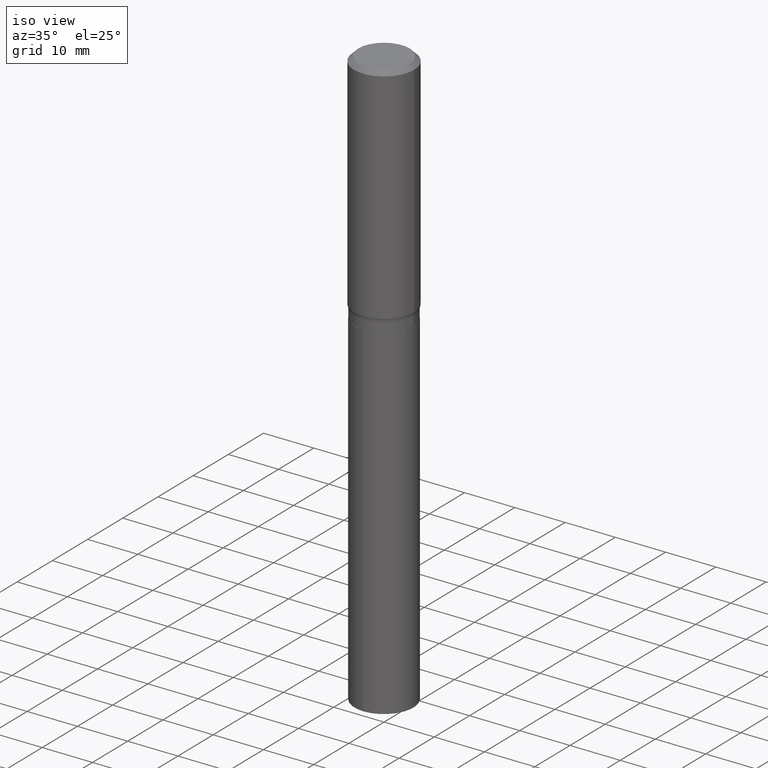
[diagram: clean part render]
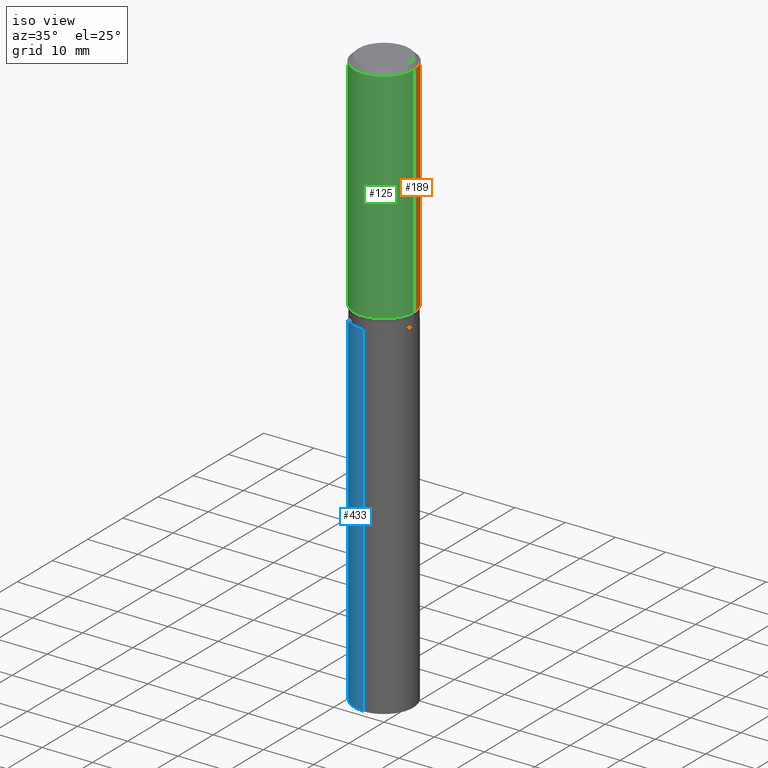
[diagram: same view with three faces highlighted in distinct colors, each labeled with its STEP entity id]
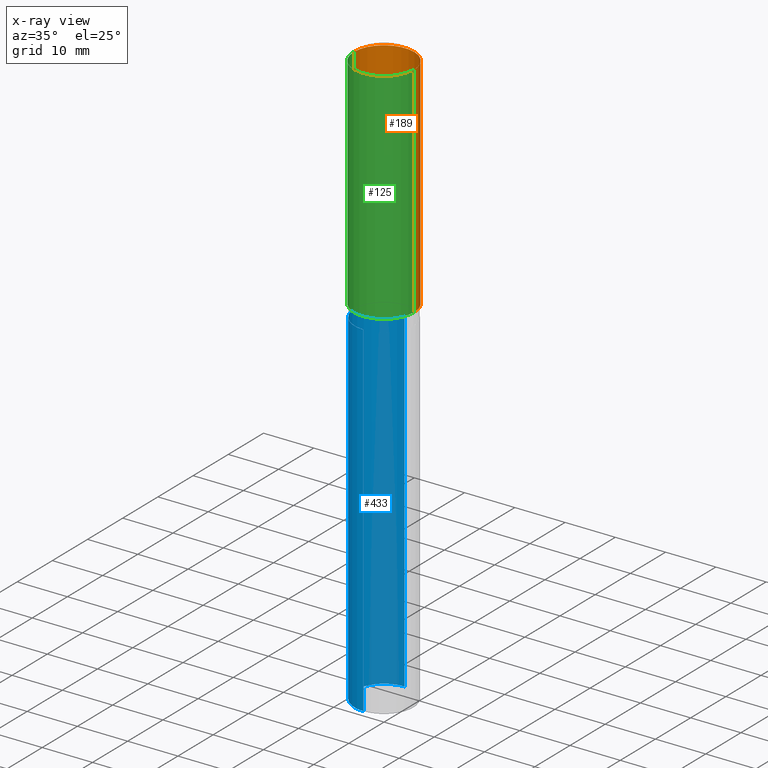
[diagram: x-ray of the same camera — body ghosted, the three highlighted faces saturated]
A machine part, iso view with three faces highlighted in distinct colors.
The next image is the same camera in x-ray (body ghosted, the three faces saturated) — at least one of them is partly hidden behind the body in this view.
Their STEP definitions:

[orange] entity #189 — the highlighted cylindrical surface (partial cylindrical patch) has radius 5.9995 mm, axis along (-0, 0, 1).
#3 = CIRCLE ( 'NONE', #422, 0.2362000000000002153 ) ;
#21 = CYLINDRICAL_SURFACE ( 'NONE', #370, 0.2362000000000001043 ) ;
#78 = VERTEX_POINT ( 'NONE', #263 ) ;
#92 = EDGE_CURVE ( 'NONE', #78, #481, #181, .T. ) ;
#94 = VERTEX_POINT ( 'NONE', #340 ) ;
#108 = AXIS2_PLACEMENT_3D ( 'NONE', #261, #296, #372 ) ;
#109 = LINE ( 'NONE', #146, #320 ) ;
#140 = DIRECTION ( 'NONE',  ( -2.445468806185136597E-29, 3.491481338843145583E-15, 1.000000000000000000 ) ) ;
#141 = VERTEX_POINT ( 'NONE', #185 ) ;
#146 = CARTESIAN_POINT ( 'NONE',  ( -0.2362000000000001043, 1.678301941865357380E-15, -1.161852468318209317E-29 ) ) ;
#160 = EDGE_CURVE ( 'NONE', #94, #481, #109, .T. ) ;
#172 = CARTESIAN_POINT ( 'NONE',  ( 0.2362000000000001043, -1.649375784469496920E-15, 1.151752954443000508E-29 ) ) ;
#176 = ORIENTED_EDGE ( 'NONE', *, *, #307, .F. ) ;
#181 = CIRCLE ( 'NONE', #108, 0.2361999999999999933 ) ;
#185 = CARTESIAN_POINT ( 'NONE',  ( 0.2362000000000002153, -7.765896418643460673E-15, -1.751841135774361291 ) ) ;
#189 = ADVANCED_FACE ( 'NONE', ( #408 ), #21, .T. ) ;
#199 = LINE ( 'NONE', #172, #260 ) ;
#235 = ORIENTED_EDGE ( 'NONE', *, *, #160, .T. ) ;
#260 = VECTOR ( 'NONE', #322, 39.37007874015748143 ) ;
#261 = CARTESIAN_POINT ( 'NONE',  ( 8.664295980313993487E-31, -1.237031838352134079E-16, -0.03543000000000021826 ) ) ;
#263 = CARTESIAN_POINT ( 'NONE',  ( 0.2361999999999999933, -1.773078968304709514E-15, -0.03543000000000021826 ) ) ;
#289 = CARTESIAN_POINT ( 'NONE',  ( 0.000000000000000000, 0.000000000000000000, 0.000000000000000000 ) ) ;
#296 = DIRECTION ( 'NONE',  ( -2.445468806185136597E-29, 3.491481338843145583E-15, 1.000000000000000000 ) ) ;
#307 = EDGE_CURVE ( 'NONE', #141, #78, #199, .T. ) ;
#313 = DIRECTION ( 'NONE',  ( 1.000000000000000000, -6.982962677686266711E-15, 0.000000000000000000 ) ) ;
#320 = VECTOR ( 'NONE', #485, 39.37007874015748143 ) ;
#322 = DIRECTION ( 'NONE',  ( -2.445468806185136877E-29, 3.491481338843145188E-15, 1.000000000000000000 ) ) ;
#340 = CARTESIAN_POINT ( 'NONE',  ( -0.2362000000000002153, -4.438218692308605387E-15, -1.751841135774361291 ) ) ;
#345 = EDGE_CURVE ( 'NONE', #141, #94, #3, .T. ) ;
#370 = AXIS2_PLACEMENT_3D ( 'NONE', #289, #379, #384 ) ;
#372 = DIRECTION ( 'NONE',  ( 1.000000000000000000, -6.982962677686266711E-15, 0.000000000000000000 ) ) ;
#379 = DIRECTION ( 'NONE',  ( -2.445468806185136597E-29, 3.491481338843145583E-15, 1.000000000000000000 ) ) ;
#384 = DIRECTION ( 'NONE',  ( 1.000000000000000000, -6.982962677686266711E-15, 4.876176775795935793E-29 ) ) ;
#401 = CARTESIAN_POINT ( 'NONE',  ( -0.2361999999999999933, -1.441809967139230695E-15, -0.03543000000000021826 ) ) ;
#408 = FACE_OUTER_BOUND ( 'NONE', #440, .T. ) ;
#422 = AXIS2_PLACEMENT_3D ( 'NONE', #478, #140, #313 ) ;
#440 = EDGE_LOOP ( 'NONE', ( #462, #235, #479, #176 ) ) ;
#462 = ORIENTED_EDGE ( 'NONE', *, *, #345, .T. ) ;
#478 = CARTESIAN_POINT ( 'NONE',  ( 4.284072850928141518E-29, -6.116520634173963359E-15, -1.751841135774361291 ) ) ;
#479 = ORIENTED_EDGE ( 'NONE', *, *, #92, .F. ) ;
#481 = VERTEX_POINT ( 'NONE', #401 ) ;
#485 = DIRECTION ( 'NONE',  ( -2.445468806185136877E-29, 3.491481338843145188E-15, 1.000000000000000000 ) ) ;

[blue] entity #433 — the highlighted cylindrical surface (edge-blend (fillet) strip) has radius 5.8496 mm, axis along (-0, 0, 1).
#10 = DIRECTION ( 'NONE',  ( -6.982962677686265922E-15, -1.000000000000000000, 3.558638289619100968E-15 ) ) ;
#17 = ORIENTED_EDGE ( 'NONE', *, *, #97, .F. ) ;
#24 = CARTESIAN_POINT ( 'NONE',  ( 1.636379920455622583E-15, 0.2302999999999935377, -1.850700000000000900 ) ) ;
#26 = ORIENTED_EDGE ( 'NONE', *, *, #417, .T. ) ;
#38 = CYLINDRICAL_SURFACE ( 'NONE', #234, 0.2303000000000000047 ) ;
#61 = VECTOR ( 'NONE', #102, 39.37007874015748143 ) ;
#84 = CARTESIAN_POINT ( 'NONE',  ( 4.525829119606832626E-29, -6.461684513797009689E-15, -1.850700000000000012 ) ) ;
#97 = EDGE_CURVE ( 'NONE', #428, #159, #488, .T. ) ;
#102 = DIRECTION ( 'NONE',  ( -2.445463332132347072E-29, 3.491489177998303329E-15, 1.000000000000000000 ) ) ;
#111 = CARTESIAN_POINT ( 'NONE',  ( 1.636379920455555924E-15, 0.2302999999999935377, -1.850700000000000900 ) ) ;
#153 = AXIS2_PLACEMENT_3D ( 'NONE', #84, #389, #10 ) ;
#154 = CARTESIAN_POINT ( 'NONE',  ( 4.525829119606832626E-29, -6.461684513797009689E-15, -1.850700000000000012 ) ) ;
#159 = VERTEX_POINT ( 'NONE', #24 ) ;
#188 = LINE ( 'NONE', #301, #61 ) ;
#202 = CIRCLE ( 'NONE', #153, 0.2303000000000000047 ) ;
#209 = ORIENTED_EDGE ( 'NONE', *, *, #227, .T. ) ;
#225 = DIRECTION ( 'NONE',  ( -2.445463332132347072E-29, 3.491489177998303329E-15, 1.000000000000000000 ) ) ;
#227 = EDGE_CURVE ( 'NONE', #428, #425, #304, .T. ) ;
#229 = CARTESIAN_POINT ( 'NONE',  ( -1.608176304671036037E-15, -0.2303000000000159919, -4.552952760190163595 ) ) ;
#234 = AXIS2_PLACEMENT_3D ( 'NONE', #154, #269, #418 ) ;
#237 = VERTEX_POINT ( 'NONE', #438 ) ;
#247 = DIRECTION ( 'NONE',  ( -2.445463332132347352E-29, 3.491489177998303329E-15, 1.000000000000000000 ) ) ;
#269 = DIRECTION ( 'NONE',  ( -2.445463332132347352E-29, 3.491489177998303329E-15, 1.000000000000000000 ) ) ;
#290 = VECTOR ( 'NONE', #225, 39.37007874015748143 ) ;
#295 = FACE_OUTER_BOUND ( 'NONE', #423, .T. ) ;
#301 = CARTESIAN_POINT ( 'NONE',  ( -1.608176304671101709E-15, -0.2303000000000064440, -1.850699999999999124 ) ) ;
#304 = CIRCLE ( 'NONE', #431, 0.2303000000000000047 ) ;
#312 = EDGE_CURVE ( 'NONE', #159, #237, #202, .T. ) ;
#314 = ORIENTED_EDGE ( 'NONE', *, *, #312, .F. ) ;
#365 = CARTESIAN_POINT ( 'NONE',  ( 1.636379920455622188E-15, 0.2302999999999841285, -4.552952760190164483 ) ) ;
#389 = DIRECTION ( 'NONE',  ( -2.445463332132347352E-29, 3.491489177998303329E-15, 1.000000000000000000 ) ) ;
#417 = EDGE_CURVE ( 'NONE', #425, #237, #188, .T. ) ;
#418 = DIRECTION ( 'NONE',  ( -6.982962677686265922E-15, -1.000000000000000000, 3.558638289619100968E-15 ) ) ;
#423 = EDGE_LOOP ( 'NONE', ( #17, #209, #26, #314 ) ) ;
#425 = VERTEX_POINT ( 'NONE', #229 ) ;
#428 = VERTEX_POINT ( 'NONE', #365 ) ;
#431 = AXIS2_PLACEMENT_3D ( 'NONE', #434, #247, #476 ) ;
#433 = ADVANCED_FACE ( 'NONE', ( #295 ), #38, .T. ) ;
#434 = CARTESIAN_POINT ( 'NONE',  ( 1.113408915880530409E-28, -1.589657078221701403E-14, -4.552952760190164483 ) ) ;
#438 = CARTESIAN_POINT ( 'NONE',  ( -1.608176304671101709E-15, -0.2303000000000064440, -1.850699999999999124 ) ) ;
#476 = DIRECTION ( 'NONE',  ( -6.982962677686265922E-15, -1.000000000000000000, 2.372425526412734110E-15 ) ) ;
#488 = LINE ( 'NONE', #111, #290 ) ;

[green] entity #125 — the highlighted cylindrical surface (partial cylindrical patch) has radius 5.9995 mm, axis along (-0, 0, 1).
#22 = ORIENTED_EDGE ( 'NONE', *, *, #169, .T. ) ;
#32 = DIRECTION ( 'NONE',  ( 1.000000000000000000, -6.982962677686266711E-15, 4.876176775795935793E-29 ) ) ;
#78 = VERTEX_POINT ( 'NONE', #263 ) ;
#94 = VERTEX_POINT ( 'NONE', #340 ) ;
#98 = AXIS2_PLACEMENT_3D ( 'NONE', #449, #151, #32 ) ;
#109 = LINE ( 'NONE', #146, #320 ) ;
#114 = DIRECTION ( 'NONE',  ( -2.445468806185136597E-29, 3.491481338843145583E-15, 1.000000000000000000 ) ) ;
#119 = CIRCLE ( 'NONE', #458, 0.2362000000000002153 ) ;
#125 = ADVANCED_FACE ( 'NONE', ( #486 ), #150, .T. ) ;
#141 = VERTEX_POINT ( 'NONE', #185 ) ;
#146 = CARTESIAN_POINT ( 'NONE',  ( -0.2362000000000001043, 1.678301941865357380E-15, -1.161852468318209317E-29 ) ) ;
#149 = DIRECTION ( 'NONE',  ( 1.000000000000000000, -6.982962677686266711E-15, 0.000000000000000000 ) ) ;
#150 = CYLINDRICAL_SURFACE ( 'NONE', #98, 0.2362000000000001043 ) ;
#151 = DIRECTION ( 'NONE',  ( -2.445468806185136597E-29, 3.491481338843145583E-15, 1.000000000000000000 ) ) ;
#160 = EDGE_CURVE ( 'NONE', #94, #481, #109, .T. ) ;
#169 = EDGE_CURVE ( 'NONE', #94, #141, #119, .T. ) ;
#172 = CARTESIAN_POINT ( 'NONE',  ( 0.2362000000000001043, -1.649375784469496920E-15, 1.151752954443000508E-29 ) ) ;
#185 = CARTESIAN_POINT ( 'NONE',  ( 0.2362000000000002153, -7.765896418643460673E-15, -1.751841135774361291 ) ) ;
#199 = LINE ( 'NONE', #172, #260 ) ;
#260 = VECTOR ( 'NONE', #322, 39.37007874015748143 ) ;
#262 = DIRECTION ( 'NONE',  ( -2.445468806185136597E-29, 3.491481338843145583E-15, 1.000000000000000000 ) ) ;
#263 = CARTESIAN_POINT ( 'NONE',  ( 0.2361999999999999933, -1.773078968304709514E-15, -0.03543000000000021826 ) ) ;
#286 = ORIENTED_EDGE ( 'NONE', *, *, #160, .F. ) ;
#307 = EDGE_CURVE ( 'NONE', #141, #78, #199, .T. ) ;
#320 = VECTOR ( 'NONE', #485, 39.37007874015748143 ) ;
#322 = DIRECTION ( 'NONE',  ( -2.445468806185136877E-29, 3.491481338843145188E-15, 1.000000000000000000 ) ) ;
#339 = CIRCLE ( 'NONE', #361, 0.2361999999999999933 ) ;
#340 = CARTESIAN_POINT ( 'NONE',  ( -0.2362000000000002153, -4.438218692308605387E-15, -1.751841135774361291 ) ) ;
#361 = AXIS2_PLACEMENT_3D ( 'NONE', #454, #114, #149 ) ;
#401 = CARTESIAN_POINT ( 'NONE',  ( -0.2361999999999999933, -1.441809967139230695E-15, -0.03543000000000021826 ) ) ;
#405 = ORIENTED_EDGE ( 'NONE', *, *, #307, .T. ) ;
#435 = EDGE_LOOP ( 'NONE', ( #286, #22, #405, #437 ) ) ;
#437 = ORIENTED_EDGE ( 'NONE', *, *, #455, .F. ) ;
#443 = DIRECTION ( 'NONE',  ( 1.000000000000000000, -6.982962677686266711E-15, 0.000000000000000000 ) ) ;
#446 = CARTESIAN_POINT ( 'NONE',  ( 4.284072850928141518E-29, -6.116520634173963359E-15, -1.751841135774361291 ) ) ;
#449 = CARTESIAN_POINT ( 'NONE',  ( 0.000000000000000000, 0.000000000000000000, 0.000000000000000000 ) ) ;
#454 = CARTESIAN_POINT ( 'NONE',  ( 8.664295980313993487E-31, -1.237031838352134079E-16, -0.03543000000000021826 ) ) ;
#455 = EDGE_CURVE ( 'NONE', #481, #78, #339, .T. ) ;
#458 = AXIS2_PLACEMENT_3D ( 'NONE', #446, #262, #443 ) ;
#481 = VERTEX_POINT ( 'NONE', #401 ) ;
#485 = DIRECTION ( 'NONE',  ( -2.445468806185136877E-29, 3.491481338843145188E-15, 1.000000000000000000 ) ) ;
#486 = FACE_OUTER_BOUND ( 'NONE', #435, .T. ) ;